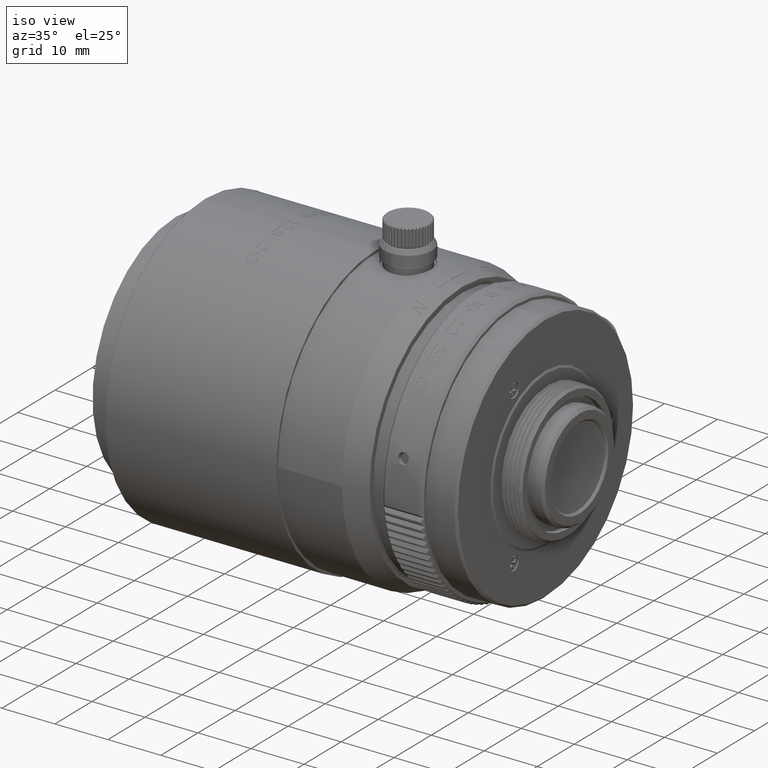
[diagram: clean part render]
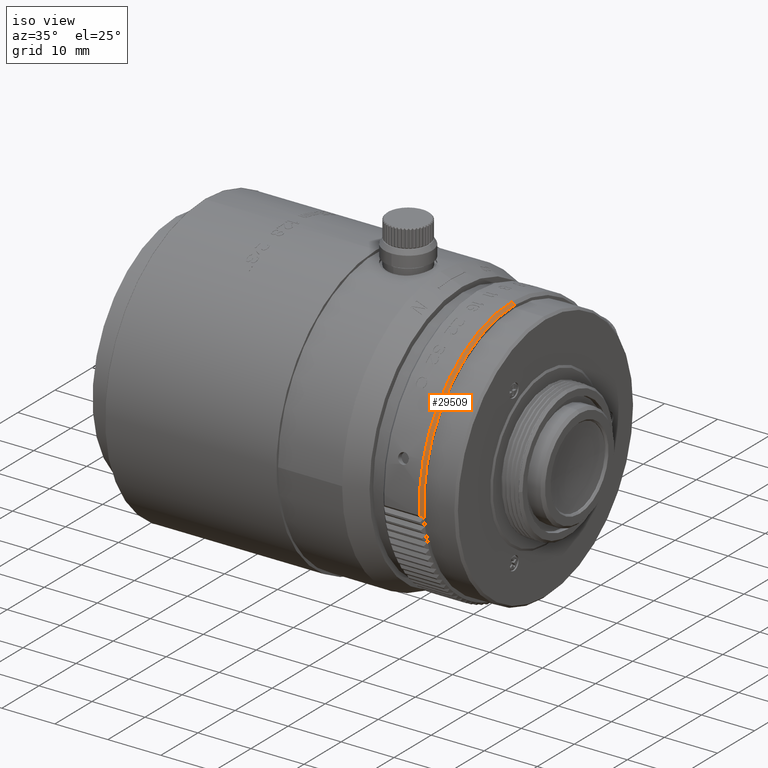
[diagram: same view with one face highlighted and labeled with its STEP entity id]
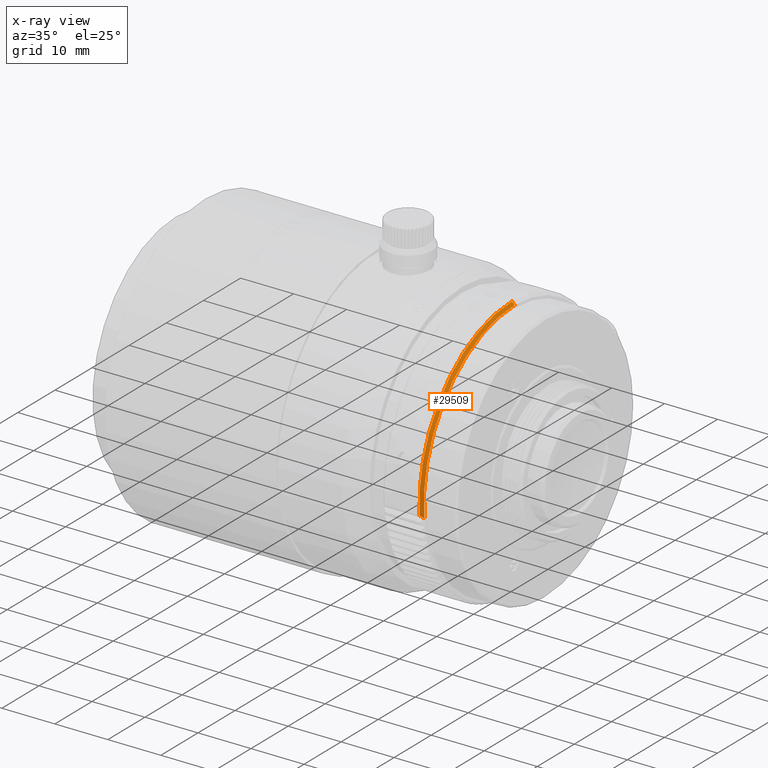
[diagram: x-ray of the same camera — body ghosted, the highlighted face saturated]
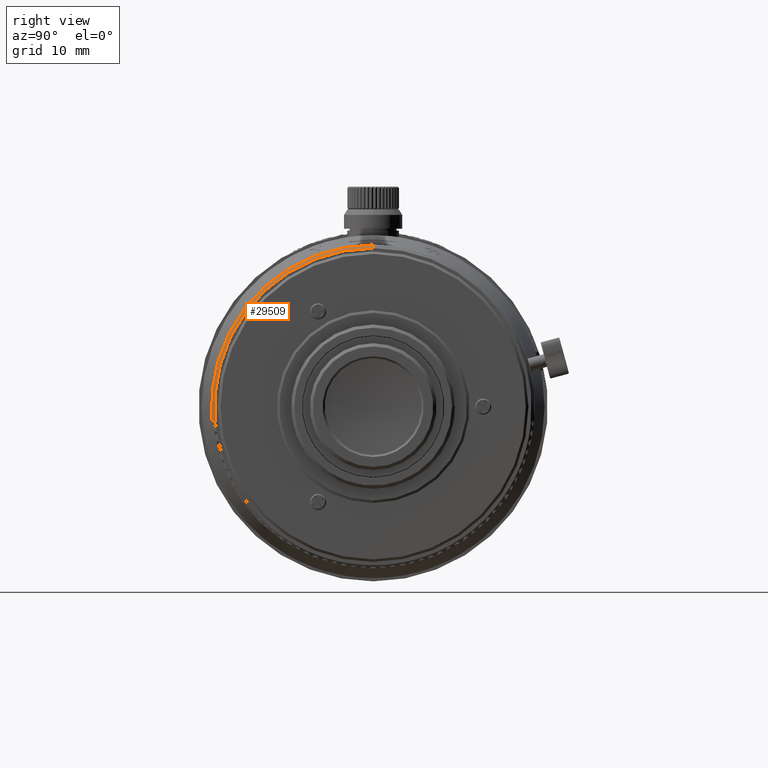
[diagram: same view with one face highlighted and labeled with its STEP entity id]
A machine part, iso view. The second image highlights one B-rep face of the part: STEP entity #29509.
The next image is the same camera in x-ray: the body ghosted, the highlighted face saturated — about 0% of this face is hidden behind the body in this view.
A second angle (right view) of the same face is appended — the face is thin or edge-on in the first view.
In plain terms, the highlighted conical surface has half-angle 45 deg.
Its self-contained STEP definition (entity closure, byte-faithful):
#419 = EDGE_CURVE ( 'NONE', #27053, #6153, #45444, .T. ) ;
#451 = CONICAL_SURFACE ( 'NONE', #8135, 24.49992879876277385, 0.7853981629543730358 ) ;
#542 = VERTEX_POINT ( 'NONE', #66046 ) ;
#2073 = ORIENTED_EDGE ( 'NONE', *, *, #419, .F. ) ;
#3803 = DIRECTION ( 'NONE',  ( 1.000000000000000000, -0.000000000000000000, -0.000000000000000000 ) ) ;
#6153 = VERTEX_POINT ( 'NONE', #8697 ) ;
#6350 = VECTOR ( 'NONE', #7742, 1000.000000000000114 ) ;
#7742 = DIRECTION ( 'NONE',  ( 0.7071067814999546508, -0.000000000000000000, -0.7071067808731402726 ) ) ;
#8135 = AXIS2_PLACEMENT_3D ( 'NONE', #65281, #77965, #28380 ) ;
#8697 = CARTESIAN_POINT ( 'NONE',  ( 2675.821401154076284, 1132.760967307000101, 24.49992879890043795 ) ) ;
#10139 = CARTESIAN_POINT ( 'NONE',  ( 2675.821401154214072, 1132.760967307000101, 0.000000000000000000 ) ) ;
#11822 = CIRCLE ( 'NONE', #73976, 24.49992879876277385 ) ;
#13213 = EDGE_CURVE ( 'NONE', #51378, #6153, #11822, .T. ) ;
#16144 = B_SPLINE_CURVE_WITH_KNOTS ( 'NONE', 3,
 ( #77115, #75961, #22721, #46151 ),
 .UNSPECIFIED., .F., .F.,
 ( 4, 4 ),
 ( 1.448265394334751276E-14, 0.0009156144782604863685 ),
 .UNSPECIFIED. ) ;
#18074 = EDGE_LOOP ( 'NONE', ( #2073, #60227, #66391, #61528 ) ) ;
#21301 = EDGE_CURVE ( 'NONE', #27053, #542, #27500, .T. ) ;
#22721 = CARTESIAN_POINT ( 'NONE',  ( 2675.489629620339201, 1108.026624740057741, -2.205036832140225389 ) ) ;
#24483 = CARTESIAN_POINT ( 'NONE',  ( 2675.821388046855645, 1108.395223039391340, -2.560961436699075833 ) ) ;
#26497 = CARTESIAN_POINT ( 'NONE',  ( 2675.321401153999886, 1132.760967307000101, 0.000000000000000000 ) ) ;
#27053 = VERTEX_POINT ( 'NONE', #57602 ) ;
#27500 = CIRCLE ( 'NONE', #38860, 24.99992879849000005 ) ;
#28380 = DIRECTION ( 'NONE',  ( 0.000000000000000000, 0.000000000000000000, 1.000000000000000000 ) ) ;
#29509 = ADVANCED_FACE ( 'NONE', ( #52594 ), #451, .T. ) ;
#31575 = CARTESIAN_POINT ( 'NONE',  ( 2675.571402048999971, 1132.760967307000101, 24.74992790375500107 ) ) ;
#38860 = AXIS2_PLACEMENT_3D ( 'NONE', #26497, #3803, #63422 ) ;
#45444 = LINE ( 'NONE', #31575, #6350 ) ;
#46151 = CARTESIAN_POINT ( 'NONE',  ( 2675.321401081183467, 1107.843441375887778, -2.028138319695291791 ) ) ;
#51378 = VERTEX_POINT ( 'NONE', #24483 ) ;
#52594 = FACE_OUTER_BOUND ( 'NONE', #18074, .T. ) ;
#57602 = CARTESIAN_POINT ( 'NONE',  ( 2675.321401154063551, 1132.760967307000101, 24.99992879844034732 ) ) ;
#60227 = ORIENTED_EDGE ( 'NONE', *, *, #21301, .T. ) ;
#61528 = ORIENTED_EDGE ( 'NONE', *, *, #13213, .T. ) ;
#63422 = DIRECTION ( 'NONE',  ( 0.000000000000000000, 0.000000000000000000, -1.000000000000000000 ) ) ;
#63890 = EDGE_CURVE ( 'NONE', #51378, #542, #16144, .T. ) ;
#64926 = DIRECTION ( 'NONE',  ( -1.000000000000000000, 0.000000000000000000, 0.000000000000000000 ) ) ;
#65281 = CARTESIAN_POINT ( 'NONE',  ( 2675.821401154214072, 1132.760967307000101, 0.000000000000000000 ) ) ;
#66046 = CARTESIAN_POINT ( 'NONE',  ( 2675.321401081183467, 1107.843441375887778, -2.028138319695291791 ) ) ;
#66089 = DIRECTION ( 'NONE',  ( 0.000000000000000000, 0.000000000000000000, 1.000000000000000000 ) ) ;
#66391 = ORIENTED_EDGE ( 'NONE', *, *, #63890, .F. ) ;
#73976 = AXIS2_PLACEMENT_3D ( 'NONE', #10139, #64926, #66089 ) ;
#75961 = CARTESIAN_POINT ( 'NONE',  ( 2675.656336230076704, 1108.210536997089321, -2.382638834317034160 ) ) ;
#77115 = CARTESIAN_POINT ( 'NONE',  ( 2675.821388046855645, 1108.395223039391340, -2.560961436699075833 ) ) ;
#77965 = DIRECTION ( 'NONE',  ( -1.000000000000000000, 0.000000000000000000, 0.000000000000000000 ) ) ;